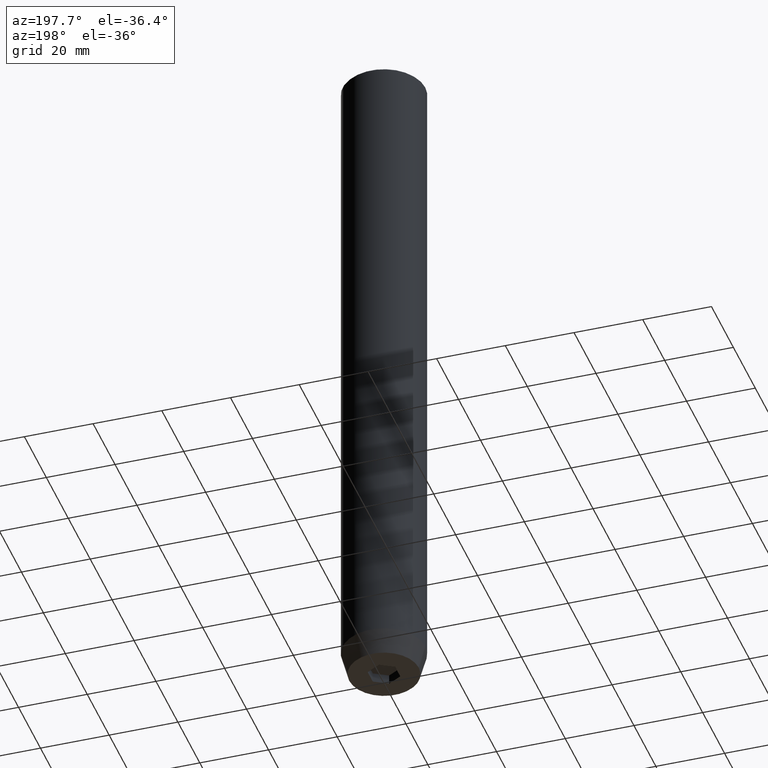
[diagram: clean part render]
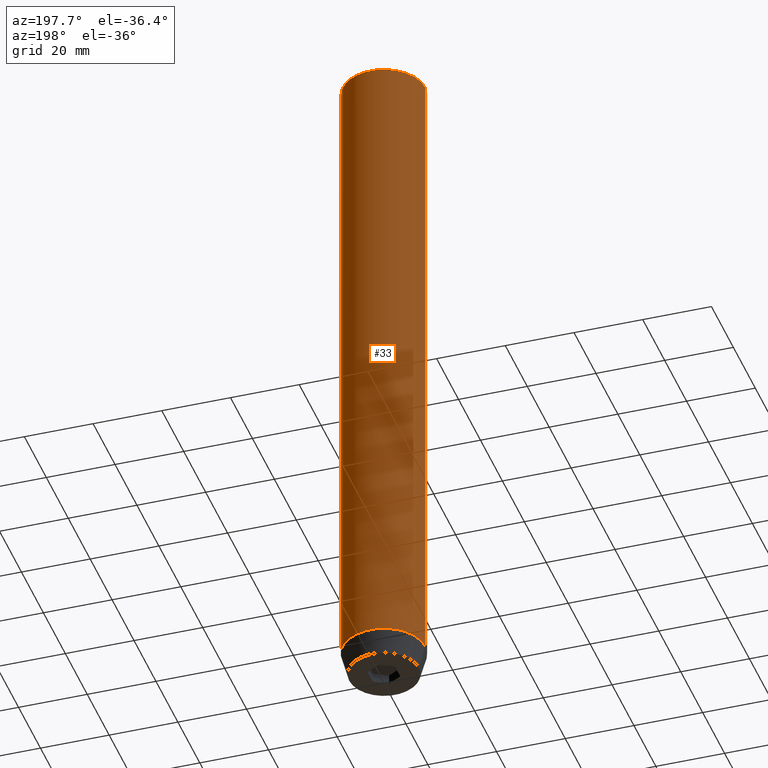
[diagram: same view with one face highlighted and labeled with its STEP entity id]
A machine part, auxiliary view. The second image highlights one B-rep face of the part: STEP entity #33.
In plain terms, the highlighted cylindrical surface (partial cylindrical patch) has radius 12 mm, axis along (-0, -0, 1).
Its self-contained STEP definition (entity closure, byte-faithful):
#33 = ADVANCED_FACE ( 'NONE', ( #397 ), #480, .T. ) ;
#37 = DIRECTION ( 'NONE',  ( -0.000000000000000000, -0.000000000000000000, 1.000000000000000000 ) ) ;
#52 = VERTEX_POINT ( 'NONE', #127 ) ;
#58 = EDGE_CURVE ( 'NONE', #52, #149, #160, .T. ) ;
#60 = ORIENTED_EDGE ( 'NONE', *, *, #123, .T. ) ;
#83 = CARTESIAN_POINT ( 'NONE',  ( 0.000000000000000000, 0.000000000000000000, 0.000000000000000000 ) ) ;
#90 = ORIENTED_EDGE ( 'NONE', *, *, #356, .T. ) ;
#104 = CIRCLE ( 'NONE', #476, 12.00000000000000000 ) ;
#112 = DIRECTION ( 'NONE',  ( -0.000000000000000000, -0.000000000000000000, 1.000000000000000000 ) ) ;
#123 = EDGE_CURVE ( 'NONE', #509, #571, #104, .T. ) ;
#127 = CARTESIAN_POINT ( 'NONE',  ( 12.00000000000000000, 0.000000000000000000, -193.0000000000000000 ) ) ;
#149 = VERTEX_POINT ( 'NONE', #425 ) ;
#158 = EDGE_LOOP ( 'NONE', ( #273, #90, #60, #270 ) ) ;
#159 = CARTESIAN_POINT ( 'NONE',  ( 12.00000000000000000, 0.000000000000000000, 0.000000000000000000 ) ) ;
#160 = CIRCLE ( 'NONE', #241, 12.00000000000000000 ) ;
#192 = LINE ( 'NONE', #444, #288 ) ;
#228 = EDGE_CURVE ( 'NONE', #52, #571, #377, .T. ) ;
#241 = AXIS2_PLACEMENT_3D ( 'NONE', #347, #313, #485 ) ;
#269 = VECTOR ( 'NONE', #112, 1000.000000000000000 ) ;
#270 = ORIENTED_EDGE ( 'NONE', *, *, #228, .F. ) ;
#273 = ORIENTED_EDGE ( 'NONE', *, *, #58, .T. ) ;
#287 = CARTESIAN_POINT ( 'NONE',  ( 12.00000000000000000, 0.000000000000000000, -0.5000000000000334177 ) ) ;
#288 = VECTOR ( 'NONE', #37, 1000.000000000000000 ) ;
#313 = DIRECTION ( 'NONE',  ( -0.000000000000000000, -0.000000000000000000, 1.000000000000000000 ) ) ;
#336 = CARTESIAN_POINT ( 'NONE',  ( 0.000000000000000000, 0.000000000000000000, -0.5000000000000334177 ) ) ;
#337 = AXIS2_PLACEMENT_3D ( 'NONE', #83, #395, #576 ) ;
#341 = DIRECTION ( 'NONE',  ( 1.000000000000000000, 0.000000000000000000, 0.000000000000000000 ) ) ;
#347 = CARTESIAN_POINT ( 'NONE',  ( 0.000000000000000000, 0.000000000000000000, -193.0000000000000000 ) ) ;
#356 = EDGE_CURVE ( 'NONE', #149, #509, #192, .T. ) ;
#377 = LINE ( 'NONE', #159, #269 ) ;
#395 = DIRECTION ( 'NONE',  ( -0.000000000000000000, -0.000000000000000000, 1.000000000000000000 ) ) ;
#397 = FACE_OUTER_BOUND ( 'NONE', #158, .T. ) ;
#425 = CARTESIAN_POINT ( 'NONE',  ( -12.00000000000000000, 1.469576158976823947E-15, -193.0000000000000000 ) ) ;
#444 = CARTESIAN_POINT ( 'NONE',  ( -12.00000000000000000, 1.469576158976823947E-15, 0.000000000000000000 ) ) ;
#475 = DIRECTION ( 'NONE',  ( 0.000000000000000000, 0.000000000000000000, -1.000000000000000000 ) ) ;
#476 = AXIS2_PLACEMENT_3D ( 'NONE', #336, #475, #341 ) ;
#480 = CYLINDRICAL_SURFACE ( 'NONE', #337, 12.00000000000000000 ) ;
#485 = DIRECTION ( 'NONE',  ( 1.000000000000000000, 0.000000000000000000, 0.000000000000000000 ) ) ;
#509 = VERTEX_POINT ( 'NONE', #516 ) ;
#516 = CARTESIAN_POINT ( 'NONE',  ( -12.00000000000000000, 1.469576158976823947E-15, -0.5000000000000334177 ) ) ;
#571 = VERTEX_POINT ( 'NONE', #287 ) ;
#576 = DIRECTION ( 'NONE',  ( 1.000000000000000000, 0.000000000000000000, 0.000000000000000000 ) ) ;